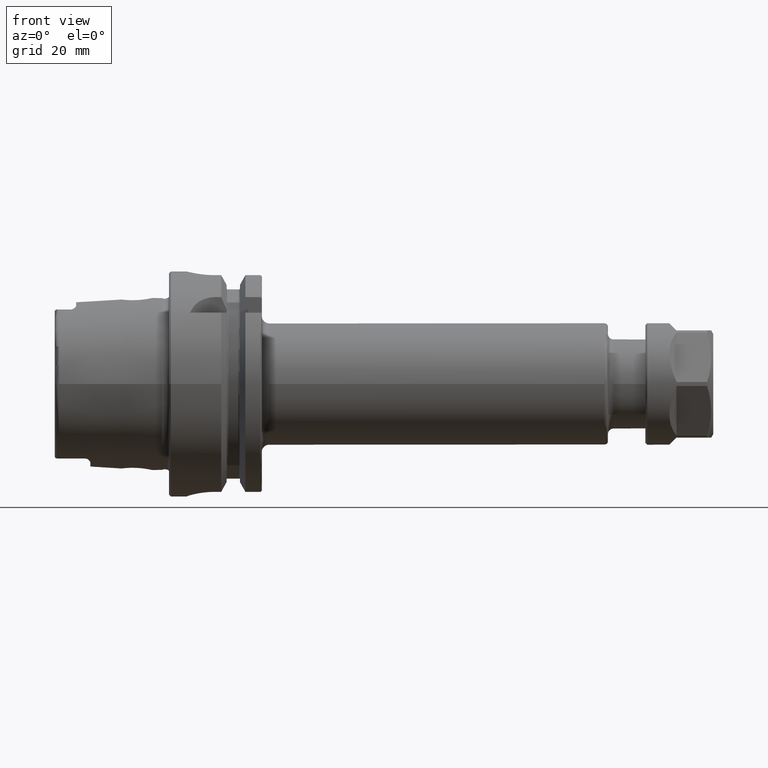
[diagram: clean part render]
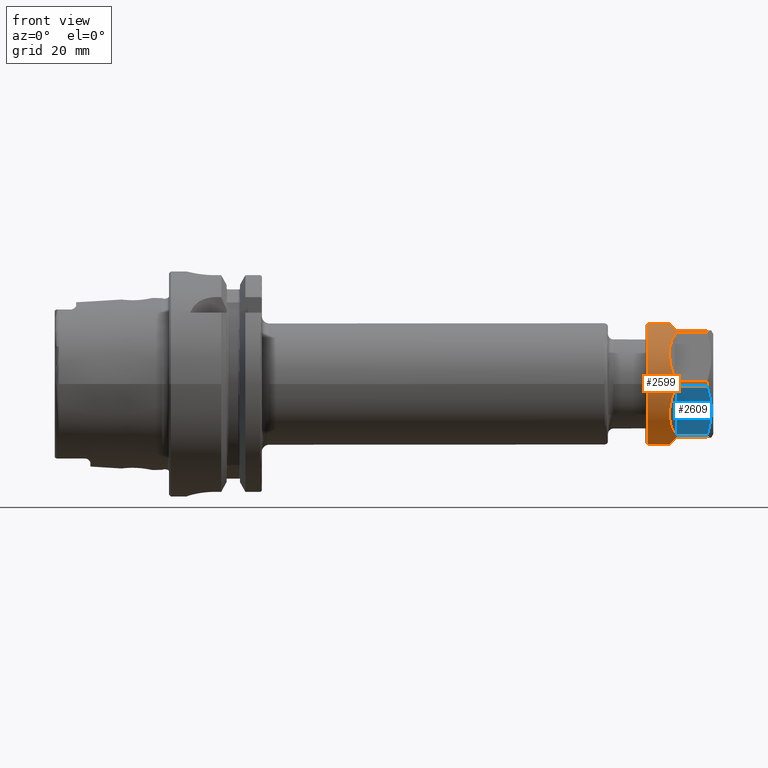
[diagram: same view with the hole feature highlighted: cylindrical wall and planar end face, labeled with their STEP entity ids]
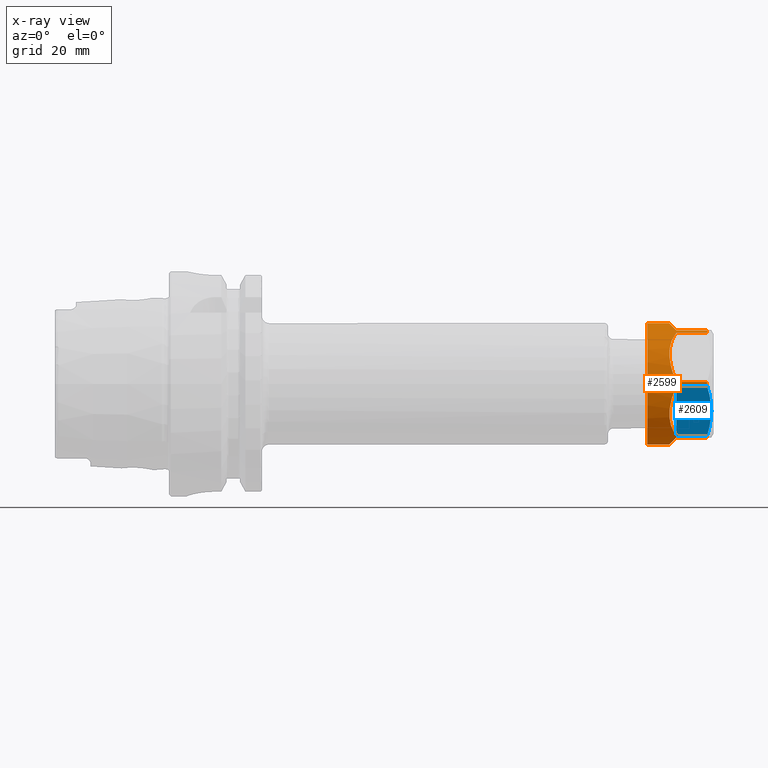
[diagram: x-ray of the same camera — body ghosted, the hole faces saturated]
A machine part, front view. The highlighted faces form one hole feature of diameter 34 mm: the cylindrical wall (entity #2599, orange) and its adjacent planar end face (entity #2609, blue) — they share a circular edge in the B-rep.
The next image is the same camera in x-ray (body ghosted, the hole faces saturated) — the bore reads through the body.
Wall:
#150=ELLIPSE('',#2964,24.0416305603426,17.);
#151=ELLIPSE('',#2966,24.0416305603437,17.);
#152=ELLIPSE('',#2968,24.0416305603437,17.);
#153=ELLIPSE('',#2970,24.0416305603426,17.);
#154=ELLIPSE('',#2971,24.0416305603426,17.);
#155=ELLIPSE('',#2973,24.0416305603437,17.);
#156=ELLIPSE('',#2975,24.0416305603437,17.);
#402=FACE_OUTER_BOUND('',#563,.T.);
#563=EDGE_LOOP('',(#2307,#2308,#2309,#2310,#2311,#2312,#2313,#2314,#2315,
#2316,#2317,#2318,#2319,#2320,#2321,#2322,#2323,#2324,#2325,#2326,#2327,
#2328,#2329,#2330,#2331,#2332,#2333,#2334));
#706=LINE('',#5294,#842);
#707=LINE('',#5298,#843);
#708=LINE('',#5302,#844);
#709=LINE('',#5306,#845);
#710=LINE('',#5310,#846);
#711=LINE('',#5314,#847);
#712=LINE('',#5317,#848);
#713=LINE('',#5321,#849);
#714=LINE('',#5325,#850);
#715=LINE('',#5329,#851);
#716=LINE('',#5333,#852);
#717=LINE('',#5337,#853);
#718=LINE('',#5340,#854);
#842=VECTOR('',#3663,8.567949192431);
#843=VECTOR('',#3666,8.567949192431);
#844=VECTOR('',#3669,8.567949192431);
#845=VECTOR('',#3672,8.567949192431);
#846=VECTOR('',#3675,8.567949192431);
#847=VECTOR('',#3678,8.567949192431);
#848=VECTOR('',#3681,17.);
#849=VECTOR('',#3684,8.567949192431);
#850=VECTOR('',#3687,8.567949192431);
#851=VECTOR('',#3690,8.567949192431);
#852=VECTOR('',#3693,8.567949192431);
#853=VECTOR('',#3696,8.567949192431);
#854=VECTOR('',#3699,8.567949192431);
#1001=CIRCLE('',#2962,17.);
#1002=CIRCLE('',#2965,17.);
#1003=CIRCLE('',#2967,17.);
#1004=CIRCLE('',#2969,17.);
#1005=CIRCLE('',#2972,17.);
#1006=CIRCLE('',#2974,17.);
#1007=CIRCLE('',#2976,17.);
#1234=VERTEX_POINT('',#5286);
#1235=VERTEX_POINT('',#5290);
#1236=VERTEX_POINT('',#5291);
#1237=VERTEX_POINT('',#5293);
#1238=VERTEX_POINT('',#5295);
#1239=VERTEX_POINT('',#5297);
#1240=VERTEX_POINT('',#5299);
#1241=VERTEX_POINT('',#5301);
#1242=VERTEX_POINT('',#5303);
#1243=VERTEX_POINT('',#5305);
#1244=VERTEX_POINT('',#5307);
#1245=VERTEX_POINT('',#5309);
#1246=VERTEX_POINT('',#5311);
#1247=VERTEX_POINT('',#5313);
#1248=VERTEX_POINT('',#5315);
#1249=VERTEX_POINT('',#5318);
#1250=VERTEX_POINT('',#5320);
#1251=VERTEX_POINT('',#5322);
#1252=VERTEX_POINT('',#5324);
#1253=VERTEX_POINT('',#5326);
#1254=VERTEX_POINT('',#5328);
#1255=VERTEX_POINT('',#5330);
#1256=VERTEX_POINT('',#5332);
#1257=VERTEX_POINT('',#5334);
#1258=VERTEX_POINT('',#5336);
#1259=VERTEX_POINT('',#5338);
#1598=EDGE_CURVE('',#1234,#1234,#1001,.T.);
#1600=EDGE_CURVE('',#1235,#1236,#150,.T.);
#1601=EDGE_CURVE('',#1235,#1237,#706,.T.);
#1602=EDGE_CURVE('',#1238,#1237,#1002,.T.);
#1603=EDGE_CURVE('',#1239,#1238,#707,.T.);
#1604=EDGE_CURVE('',#1240,#1239,#151,.T.);
#1605=EDGE_CURVE('',#1240,#1241,#708,.T.);
#1606=EDGE_CURVE('',#1242,#1241,#1003,.T.);
#1607=EDGE_CURVE('',#1243,#1242,#709,.T.);
#1608=EDGE_CURVE('',#1244,#1243,#152,.T.);
#1609=EDGE_CURVE('',#1244,#1245,#710,.T.);
#1610=EDGE_CURVE('',#1246,#1245,#1004,.T.);
#1611=EDGE_CURVE('',#1247,#1246,#711,.T.);
#1612=EDGE_CURVE('',#1248,#1247,#153,.T.);
#1613=EDGE_CURVE('',#1248,#1234,#712,.T.);
#1614=EDGE_CURVE('',#1249,#1248,#154,.T.);
#1615=EDGE_CURVE('',#1249,#1250,#713,.T.);
#1616=EDGE_CURVE('',#1251,#1250,#1005,.T.);
#1617=EDGE_CURVE('',#1252,#1251,#714,.T.);
#1618=EDGE_CURVE('',#1253,#1252,#155,.T.);
#1619=EDGE_CURVE('',#1253,#1254,#715,.T.);
#1620=EDGE_CURVE('',#1255,#1254,#1006,.T.);
#1621=EDGE_CURVE('',#1256,#1255,#716,.T.);
#1622=EDGE_CURVE('',#1257,#1256,#156,.T.);
#1623=EDGE_CURVE('',#1257,#1258,#717,.T.);
#1624=EDGE_CURVE('',#1259,#1258,#1007,.T.);
#1625=EDGE_CURVE('',#1236,#1259,#718,.T.);
#2307=ORIENTED_EDGE('',*,*,#1600,.F.);
#2308=ORIENTED_EDGE('',*,*,#1601,.T.);
#2309=ORIENTED_EDGE('',*,*,#1602,.F.);
#2310=ORIENTED_EDGE('',*,*,#1603,.F.);
#2311=ORIENTED_EDGE('',*,*,#1604,.F.);
#2312=ORIENTED_EDGE('',*,*,#1605,.T.);
#2313=ORIENTED_EDGE('',*,*,#1606,.F.);
#2314=ORIENTED_EDGE('',*,*,#1607,.F.);
#2315=ORIENTED_EDGE('',*,*,#1608,.F.);
#2316=ORIENTED_EDGE('',*,*,#1609,.T.);
#2317=ORIENTED_EDGE('',*,*,#1610,.F.);
#2318=ORIENTED_EDGE('',*,*,#1611,.F.);
#2319=ORIENTED_EDGE('',*,*,#1612,.F.);
#2320=ORIENTED_EDGE('',*,*,#1613,.T.);
#2321=ORIENTED_EDGE('',*,*,#1598,.F.);
#2322=ORIENTED_EDGE('',*,*,#1613,.F.);
#2323=ORIENTED_EDGE('',*,*,#1614,.F.);
#2324=ORIENTED_EDGE('',*,*,#1615,.T.);
#2325=ORIENTED_EDGE('',*,*,#1616,.F.);
#2326=ORIENTED_EDGE('',*,*,#1617,.F.);
#2327=ORIENTED_EDGE('',*,*,#1618,.F.);
#2328=ORIENTED_EDGE('',*,*,#1619,.T.);
#2329=ORIENTED_EDGE('',*,*,#1620,.F.);
#2330=ORIENTED_EDGE('',*,*,#1621,.F.);
#2331=ORIENTED_EDGE('',*,*,#1622,.F.);
#2332=ORIENTED_EDGE('',*,*,#1623,.T.);
#2333=ORIENTED_EDGE('',*,*,#1624,.F.);
#2334=ORIENTED_EDGE('',*,*,#1625,.F.);
#2471=CYLINDRICAL_SURFACE('',#2963,17.);
#2599=ADVANCED_FACE('',(#402),#2471,.T.);
#2962=AXIS2_PLACEMENT_3D('',#5287,#3656,#3657);
#2963=AXIS2_PLACEMENT_3D('',#5289,#3659,#3660);
#2964=AXIS2_PLACEMENT_3D('',#5292,#3661,#3662);
#2965=AXIS2_PLACEMENT_3D('',#5296,#3664,#3665);
#2966=AXIS2_PLACEMENT_3D('',#5300,#3667,#3668);
#2967=AXIS2_PLACEMENT_3D('',#5304,#3670,#3671);
#2968=AXIS2_PLACEMENT_3D('',#5308,#3673,#3674);
#2969=AXIS2_PLACEMENT_3D('',#5312,#3676,#3677);
#2970=AXIS2_PLACEMENT_3D('',#5316,#3679,#3680);
#2971=AXIS2_PLACEMENT_3D('',#5319,#3682,#3683);
#2972=AXIS2_PLACEMENT_3D('',#5323,#3685,#3686);
#2973=AXIS2_PLACEMENT_3D('',#5327,#3688,#3689);
#2974=AXIS2_PLACEMENT_3D('',#5331,#3691,#3692);
#2975=AXIS2_PLACEMENT_3D('',#5335,#3694,#3695);
#2976=AXIS2_PLACEMENT_3D('',#5339,#3697,#3698);
#3656=DIRECTION('center_axis',(-1.,0.,0.));
#3657=DIRECTION('ref_axis',(0.,0.,-1.));
#3659=DIRECTION('center_axis',(1.,0.,0.));
#3660=DIRECTION('ref_axis',(0.,0.,-1.));
#3661=DIRECTION('center_axis',(0.707106781186548,0.,-0.707106781186548));
#3662=DIRECTION('ref_axis',(-0.707106781186548,0.,-0.707106781186547));
#3663=DIRECTION('',(1.,0.,0.));
#3664=DIRECTION('center_axis',(1.,0.,0.));
#3665=DIRECTION('ref_axis',(0.,-0.528845944515708,-0.848717837075013));
#3666=DIRECTION('',(1.,0.,0.));
#3667=DIRECTION('center_axis',(0.707106781186515,-0.612372435695813,-0.353553390593307));
#3668=DIRECTION('ref_axis',(-0.70710678118658,-0.612372435695756,-0.353553390593275));
#3669=DIRECTION('',(1.,0.,0.));
#3670=DIRECTION('center_axis',(1.,0.,0.));
#3671=DIRECTION('ref_axis',(0.,-0.999434179809799,0.03363510410144));
#3672=DIRECTION('',(1.,0.,0.));
#3673=DIRECTION('center_axis',(0.707106781186515,-0.612372435695813,0.353553390593307));
#3674=DIRECTION('ref_axis',(0.70710678118658,0.612372435695756,-0.353553390593275));
#3675=DIRECTION('',(1.,0.,0.));
#3676=DIRECTION('center_axis',(1.,0.,0.));
#3677=DIRECTION('ref_axis',(0.,-0.470588235294092,0.882352941176485));
#3678=DIRECTION('',(1.,0.,0.));
#3679=DIRECTION('center_axis',(0.707106781186548,0.,0.707106781186548));
#3680=DIRECTION('ref_axis',(0.707106781186548,0.,-0.707106781186547));
#3681=DIRECTION('',(-1.,0.,0.));
#3682=DIRECTION('center_axis',(0.707106781186548,0.,0.707106781186548));
#3683=DIRECTION('ref_axis',(0.707106781186548,0.,-0.707106781186547));
#3684=DIRECTION('',(1.,0.,0.));
#3685=DIRECTION('center_axis',(1.,0.,0.));
#3686=DIRECTION('ref_axis',(0.,0.528845944515708,0.848717837075013));
#3687=DIRECTION('',(1.,0.,0.));
#3688=DIRECTION('center_axis',(0.707106781186515,0.612372435695813,0.353553390593307));
#3689=DIRECTION('ref_axis',(0.70710678118658,-0.612372435695756,-0.353553390593275));
#3690=DIRECTION('',(1.,0.,0.));
#3691=DIRECTION('center_axis',(1.,0.,0.));
#3692=DIRECTION('ref_axis',(0.,0.999434179809799,-0.03363510410144));
#3693=DIRECTION('',(1.,0.,0.));
#3694=DIRECTION('center_axis',(0.707106781186515,0.612372435695813,-0.353553390593307));
#3695=DIRECTION('ref_axis',(-0.70710678118658,0.612372435695756,-0.353553390593275));
#3696=DIRECTION('',(1.,0.,0.));
#3697=DIRECTION('center_axis',(1.,0.,0.));
#3698=DIRECTION('ref_axis',(0.,0.470588235294092,-0.882352941176485));
#3699=DIRECTION('',(1.,0.,0.));
#5286=CARTESIAN_POINT('',(-9.,0.,17.));
#5287=CARTESIAN_POINT('Origin',(-9.,0.,0.));
#5289=CARTESIAN_POINT('Origin',(-9.5,0.,0.));
#5290=CARTESIAN_POINT('',(-0.8,-8.,-15.));
#5291=CARTESIAN_POINT('',(-0.8,8.,-15.));
#5292=CARTESIAN_POINT('Origin',(14.2,0.,0.));
#5293=CARTESIAN_POINT('',(7.767949192431,-8.,-15.));
#5294=CARTESIAN_POINT('',(-0.8,-8.,-15.));
#5295=CARTESIAN_POINT('',(7.767949192431,-8.990381056767,-14.42820323028));
#5296=CARTESIAN_POINT('Origin',(7.767949192431,0.,0.));
#5297=CARTESIAN_POINT('',(-0.8,-8.990381056767,-14.42820323028));
#5298=CARTESIAN_POINT('',(-0.8,-8.990381056767,-14.42820323028));
#5299=CARTESIAN_POINT('',(-0.8,-16.99038105677,-0.5717967697245));
#5300=CARTESIAN_POINT('Origin',(14.1999999999998,0.,0.));
#5301=CARTESIAN_POINT('',(7.767949192431,-16.99038105677,-0.5717967697245));
#5302=CARTESIAN_POINT('',(-0.8,-16.99038105677,-0.5717967697245));
#5303=CARTESIAN_POINT('',(7.767949192431,-16.99038105677,0.5717967697245));
#5304=CARTESIAN_POINT('Origin',(7.767949192431,0.,0.));
#5305=CARTESIAN_POINT('',(-0.8,-16.99038105677,0.5717967697245));
#5306=CARTESIAN_POINT('',(-0.8,-16.99038105677,0.5717967697245));
#5307=CARTESIAN_POINT('',(-0.8,-8.990381056767,14.42820323028));
#5308=CARTESIAN_POINT('Origin',(14.2000000000043,0.,0.));
#5309=CARTESIAN_POINT('',(7.767949192431,-8.990381056767,14.42820323028));
#5310=CARTESIAN_POINT('',(-0.8,-8.990381056767,14.42820323028));
#5311=CARTESIAN_POINT('',(7.767949192431,-8.,15.));
#5312=CARTESIAN_POINT('Origin',(7.767949192431,0.,0.));
#5313=CARTESIAN_POINT('',(-0.8,-8.,15.));
#5314=CARTESIAN_POINT('',(-0.8,-8.,15.));
#5315=CARTESIAN_POINT('',(-2.80000000000001,-2.0818995585505E-15,17.));
#5316=CARTESIAN_POINT('Origin',(14.2,0.,0.));
#5317=CARTESIAN_POINT('',(-9.5,-2.0818995585505E-15,17.));
#5318=CARTESIAN_POINT('',(-0.8,8.,15.));
#5319=CARTESIAN_POINT('Origin',(14.2,0.,0.));
#5320=CARTESIAN_POINT('',(7.767949192431,8.,15.));
#5321=CARTESIAN_POINT('',(-0.8,8.,15.));
#5322=CARTESIAN_POINT('',(7.767949192431,8.990381056767,14.42820323028));
#5323=CARTESIAN_POINT('Origin',(7.767949192431,0.,0.));
#5324=CARTESIAN_POINT('',(-0.8,8.990381056767,14.42820323028));
#5325=CARTESIAN_POINT('',(-0.8,8.990381056767,14.42820323028));
#5326=CARTESIAN_POINT('',(-0.8,16.99038105677,0.5717967697245));
#5327=CARTESIAN_POINT('Origin',(14.1999999999998,0.,0.));
#5328=CARTESIAN_POINT('',(7.767949192431,16.99038105677,0.5717967697245));
#5329=CARTESIAN_POINT('',(-0.8,16.99038105677,0.5717967697245));
#5330=CARTESIAN_POINT('',(7.767949192431,16.99038105677,-0.5717967697245));
#5331=CARTESIAN_POINT('Origin',(7.767949192431,0.,0.));
#5332=CARTESIAN_POINT('',(-0.8,16.99038105677,-0.5717967697245));
#5333=CARTESIAN_POINT('',(-0.8,16.99038105677,-0.5717967697245));
#5334=CARTESIAN_POINT('',(-0.8,8.990381056767,-14.42820323028));
#5335=CARTESIAN_POINT('Origin',(14.2000000000043,0.,0.));
#5336=CARTESIAN_POINT('',(7.767949192431,8.990381056767,-14.42820323028));
#5337=CARTESIAN_POINT('',(-0.8,8.990381056767,-14.42820323028));
#5338=CARTESIAN_POINT('',(7.767949192431,8.,-15.));
#5339=CARTESIAN_POINT('Origin',(7.767949192431,0.,0.));
#5340=CARTESIAN_POINT('',(-0.8,8.,-15.));
End face:
#81=(
BOUNDED_CURVE()
B_SPLINE_CURVE(2,(#5367,#5368,#5369),.UNSPECIFIED.,.F.,.F.)
B_SPLINE_CURVE_WITH_KNOTS((3,3),(1.89977904823277,4.47851568551626),
 .UNSPECIFIED.)
CURVE()
GEOMETRIC_REPRESENTATION_ITEM()
RATIONAL_B_SPLINE_CURVE((1.51788044142271,1.72026450027926,1.51788044142274))
REPRESENTATION_ITEM('')
);
#251=PLANE('',#2987);
#412=FACE_OUTER_BOUND('',#573,.T.);
#573=EDGE_LOOP('',(#2377,#2378,#2379,#2380));
#707=LINE('',#5298,#843);
#708=LINE('',#5302,#844);
#724=LINE('',#5380,#860);
#843=VECTOR('',#3666,8.567949192431);
#844=VECTOR('',#3669,8.567949192431);
#860=VECTOR('',#3727,15.9999999999995);
#1238=VERTEX_POINT('',#5295);
#1239=VERTEX_POINT('',#5297);
#1240=VERTEX_POINT('',#5299);
#1241=VERTEX_POINT('',#5301);
#1603=EDGE_CURVE('',#1239,#1238,#707,.T.);
#1605=EDGE_CURVE('',#1240,#1241,#708,.T.);
#1635=EDGE_CURVE('',#1238,#1241,#81,.T.);
#1639=EDGE_CURVE('',#1239,#1240,#724,.T.);
#2377=ORIENTED_EDGE('',*,*,#1639,.F.);
#2378=ORIENTED_EDGE('',*,*,#1603,.T.);
#2379=ORIENTED_EDGE('',*,*,#1635,.T.);
#2380=ORIENTED_EDGE('',*,*,#1605,.F.);
#2609=ADVANCED_FACE('',(#412),#251,.F.);
#2987=AXIS2_PLACEMENT_3D('',#5379,#3725,#3726);
#3666=DIRECTION('',(1.,0.,0.));
#3669=DIRECTION('',(1.,0.,0.));
#3725=DIRECTION('center_axis',(0.,0.866025403784429,0.500000000000017));
#3726=DIRECTION('ref_axis',(0.,-0.500000000000017,0.866025403784429));
#3727=DIRECTION('',(0.,-0.500000000000017,0.866025403784429));
#5295=CARTESIAN_POINT('',(7.767949192431,-8.990381056767,-14.42820323028));
#5297=CARTESIAN_POINT('',(-0.8,-8.990381056767,-14.42820323028));
#5298=CARTESIAN_POINT('',(-0.8,-8.990381056767,-14.42820323028));
#5299=CARTESIAN_POINT('',(-0.8,-16.99038105677,-0.5717967697245));
#5301=CARTESIAN_POINT('',(7.767949192431,-16.99038105677,-0.5717967697245));
#5302=CARTESIAN_POINT('',(-0.8,-16.99038105677,-0.5717967697245));
#5367=CARTESIAN_POINT('Ctrl Pts',(7.76794919242971,-8.99038105676321,-14.4282032302778));
#5368=CARTESIAN_POINT('Ctrl Pts',(9.94150314702762,-12.9903810567648,-7.49999999999987));
#5369=CARTESIAN_POINT('Ctrl Pts',(7.76794919243006,-16.9903810567662,-0.571796769722221));
#5379=CARTESIAN_POINT('Origin',(9.5,-7.990381056767,-16.16025403784));
#5380=CARTESIAN_POINT('',(-0.8,-8.990381056767,-14.42820323028));